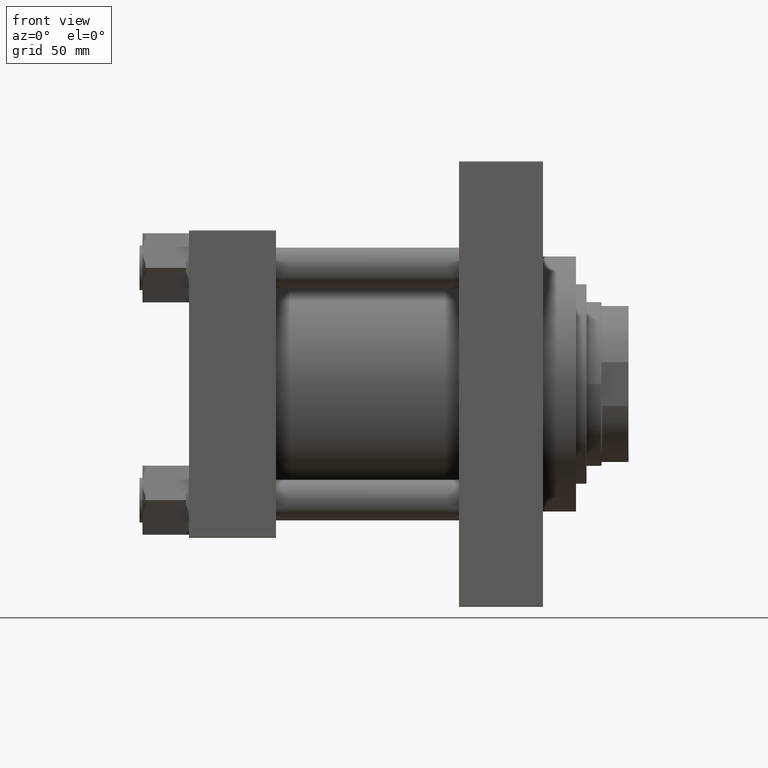
[diagram: clean part render]
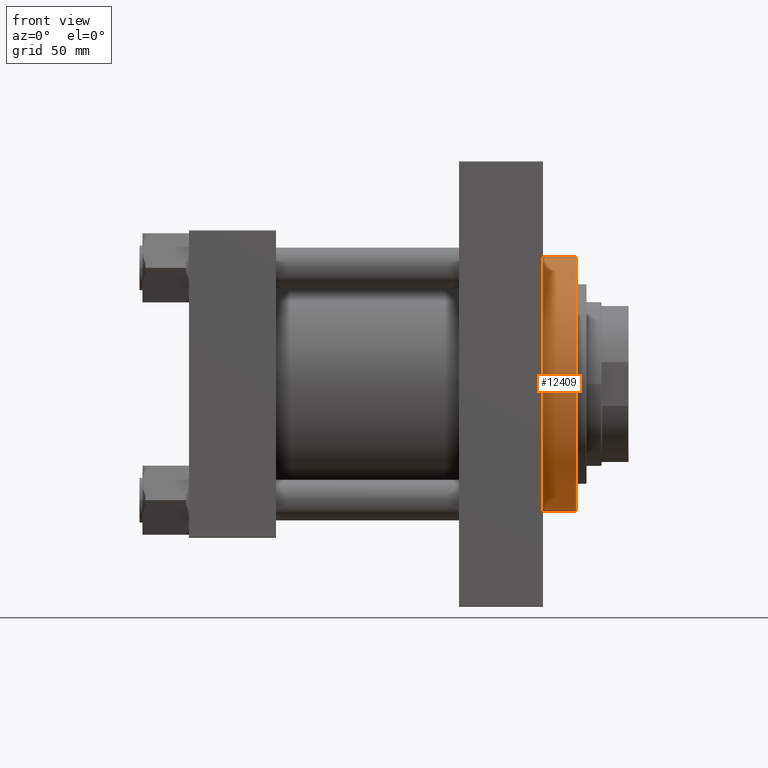
[diagram: same view with one face highlighted and labeled with its STEP entity id]
A machine part, front view. The second image highlights one B-rep face of the part: STEP entity #12409.
In plain terms, the highlighted cylindrical surface (partial cylindrical patch) has radius 85 mm, axis along (-1, -0, -0).
Its self-contained STEP definition (entity closure, byte-faithful):
#846 = DIRECTION ( 'NONE',  ( 0.000000000000000000, 0.000000000000000000, -1.000000000000000000 ) ) ;
#4374 = EDGE_CURVE ( 'NONE', #9964, #41978, #30753, .T. ) ;
#4870 = ORIENTED_EDGE ( 'NONE', *, *, #12256, .T. ) ;
#6388 = AXIS2_PLACEMENT_3D ( 'NONE', #26158, #18417, #44278 ) ;
#9964 = VERTEX_POINT ( 'NONE', #20916 ) ;
#10048 = ORIENTED_EDGE ( 'NONE', *, *, #47808, .F. ) ;
#11221 = EDGE_CURVE ( 'NONE', #21149, #41978, #27220, .T. ) ;
#12256 = EDGE_CURVE ( 'NONE', #17642, #21149, #46007, .T. ) ;
#12409 = ADVANCED_FACE ( 'NONE', ( #44282 ), #37033, .T. ) ;
#13627 = DIRECTION ( 'NONE',  ( -1.000000000000000000, -0.000000000000000000, -0.000000000000000000 ) ) ;
#14366 = CARTESIAN_POINT ( 'NONE',  ( 258.0000000000000000, 0.000000000000000000, 85.00000000000001421 ) ) ;
#15039 = DIRECTION ( 'NONE',  ( -1.000000000000000000, -0.000000000000000000, -0.000000000000000000 ) ) ;
#17642 = VERTEX_POINT ( 'NONE', #14366 ) ;
#18417 = DIRECTION ( 'NONE',  ( 1.000000000000000000, 0.000000000000000000, 0.000000000000000000 ) ) ;
#18661 = CARTESIAN_POINT ( 'NONE',  ( 258.0000000000000000, 0.000000000000000000, 0.000000000000000000 ) ) ;
#19661 = DIRECTION ( 'NONE',  ( 1.000000000000000000, 0.000000000000000000, 0.000000000000000000 ) ) ;
#20916 = CARTESIAN_POINT ( 'NONE',  ( 258.0000000000000000, 1.040949779275250495E-14, -85.00000000000001421 ) ) ;
#21149 = VERTEX_POINT ( 'NONE', #34215 ) ;
#22377 = AXIS2_PLACEMENT_3D ( 'NONE', #34648, #19661, #846 ) ;
#24968 = EDGE_LOOP ( 'NONE', ( #42071, #10048, #4870, #36143 ) ) ;
#26158 = CARTESIAN_POINT ( 'NONE',  ( 236.0000000000000000, 0.000000000000000000, 0.000000000000000000 ) ) ;
#26413 = DIRECTION ( 'NONE',  ( -1.000000000000000000, -0.000000000000000000, -0.000000000000000000 ) ) ;
#26506 = CARTESIAN_POINT ( 'NONE',  ( 236.0000000000000000, 1.040949779275250495E-14, -85.00000000000001421 ) ) ;
#27220 = CIRCLE ( 'NONE', #6388, 85.00000000000001421 ) ;
#30753 = LINE ( 'NONE', #41856, #40948 ) ;
#34215 = CARTESIAN_POINT ( 'NONE',  ( 236.0000000000000000, 0.000000000000000000, 85.00000000000001421 ) ) ;
#34648 = CARTESIAN_POINT ( 'NONE',  ( 258.0000000000000000, 0.000000000000000000, 0.000000000000000000 ) ) ;
#35745 = VECTOR ( 'NONE', #13627, 1000.000000000000000 ) ;
#36143 = ORIENTED_EDGE ( 'NONE', *, *, #11221, .T. ) ;
#37033 = CYLINDRICAL_SURFACE ( 'NONE', #44214, 85.00000000000001421 ) ;
#40111 = CIRCLE ( 'NONE', #22377, 85.00000000000001421 ) ;
#40948 = VECTOR ( 'NONE', #26413, 1000.000000000000000 ) ;
#41856 = CARTESIAN_POINT ( 'NONE',  ( 258.0000000000000000, 1.040949779275250495E-14, -85.00000000000001421 ) ) ;
#41978 = VERTEX_POINT ( 'NONE', #26506 ) ;
#42071 = ORIENTED_EDGE ( 'NONE', *, *, #4374, .F. ) ;
#44214 = AXIS2_PLACEMENT_3D ( 'NONE', #18661, #15039, #44532 ) ;
#44278 = DIRECTION ( 'NONE',  ( 0.000000000000000000, 0.000000000000000000, -1.000000000000000000 ) ) ;
#44282 = FACE_OUTER_BOUND ( 'NONE', #24968, .T. ) ;
#44532 = DIRECTION ( 'NONE',  ( 0.000000000000000000, 0.000000000000000000, 1.000000000000000000 ) ) ;
#46007 = LINE ( 'NONE', #46735, #35745 ) ;
#46735 = CARTESIAN_POINT ( 'NONE',  ( 258.0000000000000000, 0.000000000000000000, 85.00000000000001421 ) ) ;
#47808 = EDGE_CURVE ( 'NONE', #17642, #9964, #40111, .T. ) ;